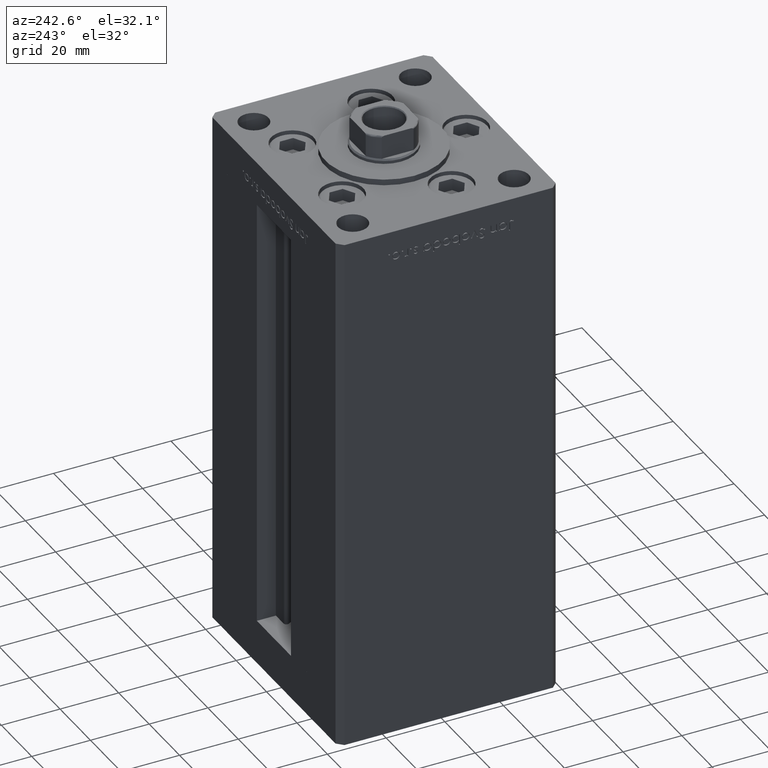
[diagram: clean part render]
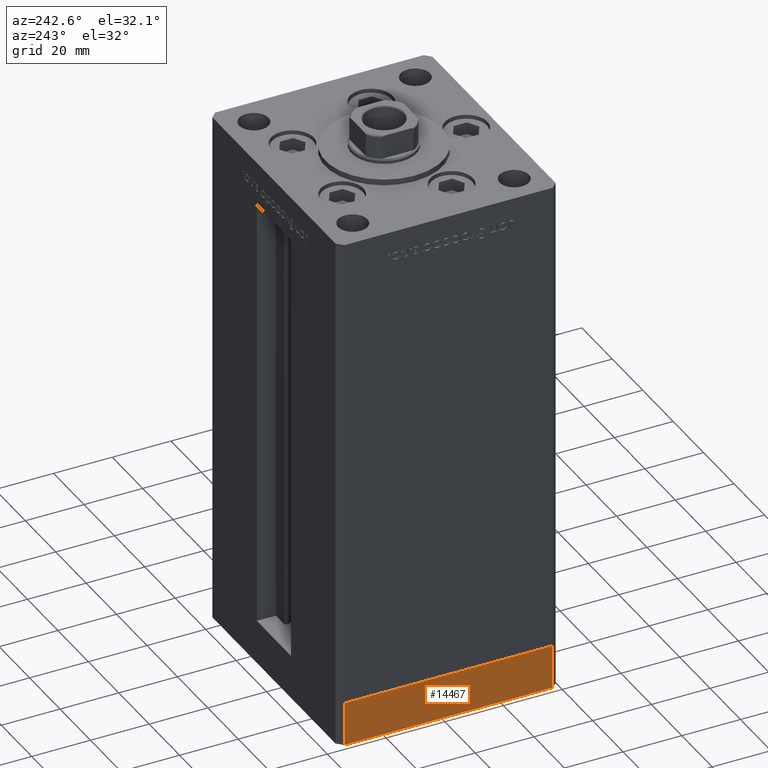
[diagram: same view with one face highlighted and labeled with its STEP entity id]
A machine part, auxiliary view. The second image highlights one B-rep face of the part: STEP entity #14467.
In plain terms, the highlighted planar face has unit normal (-1, 0, 0).
Its self-contained STEP definition (entity closure, byte-faithful):
#4286 = CARTESIAN_POINT ( 'NONE',  ( 42.49999999999992895, 35.50000000000000000, 0.000000000000000000 ) ) ;
#4882 = PLANE ( 'NONE',  #37146 ) ;
#6563 = LINE ( 'NONE', #38265, #41406 ) ;
#8338 = DIRECTION ( 'NONE',  ( -1.172770800660376741E-15, 1.000000000000000000, 0.000000000000000000 ) ) ;
#11722 = ORIENTED_EDGE ( 'NONE', *, *, #47551, .T. ) ;
#13470 = VERTEX_POINT ( 'NONE', #4286 ) ;
#14467 = ADVANCED_FACE ( 'NONE', ( #21287 ), #4882, .T. ) ;
#14987 = LINE ( 'NONE', #23442, #48666 ) ;
#15850 = VERTEX_POINT ( 'NONE', #39771 ) ;
#16283 = DIRECTION ( 'NONE',  ( 0.000000000000000000, 0.000000000000000000, 1.000000000000000000 ) ) ;
#18770 = CARTESIAN_POINT ( 'NONE',  ( 42.50000000000000711, -35.50000000000000000, -15.00000000000000000 ) ) ;
#21287 = FACE_OUTER_BOUND ( 'NONE', #24768, .T. ) ;
#22066 = ORIENTED_EDGE ( 'NONE', *, *, #35926, .T. ) ;
#22708 = DIRECTION ( 'NONE',  ( -1.172770800660376741E-15, 1.000000000000000000, 0.000000000000000000 ) ) ;
#22887 = LINE ( 'NONE', #42925, #52130 ) ;
#23442 = CARTESIAN_POINT ( 'NONE',  ( 42.49999999999992895, 35.50000000000000000, -15.00000000000000000 ) ) ;
#24768 = EDGE_LOOP ( 'NONE', ( #43894, #44280, #11722, #22066 ) ) ;
#25854 = CARTESIAN_POINT ( 'NONE',  ( 42.49999999999992895, 35.50000000000000000, -15.00000000000000000 ) ) ;
#26454 = VERTEX_POINT ( 'NONE', #25854 ) ;
#33214 = EDGE_CURVE ( 'NONE', #15850, #34758, #46724, .T. ) ;
#34758 = VERTEX_POINT ( 'NONE', #45916 ) ;
#35926 = EDGE_CURVE ( 'NONE', #26454, #13470, #14987, .T. ) ;
#37146 = AXIS2_PLACEMENT_3D ( 'NONE', #48719, #41066, #8338 ) ;
#38265 = CARTESIAN_POINT ( 'NONE',  ( 42.50000000000000711, -35.50000000000000000, -15.00000000000000000 ) ) ;
#39070 = EDGE_CURVE ( 'NONE', #34758, #13470, #22887, .T. ) ;
#39771 = CARTESIAN_POINT ( 'NONE',  ( 42.50000000000000711, -35.50000000000000000, -15.00000000000000000 ) ) ;
#41066 = DIRECTION ( 'NONE',  ( 1.000000000000000000, 1.172770800660376741E-15, -0.000000000000000000 ) ) ;
#41406 = VECTOR ( 'NONE', #22708, 1000.000000000000000 ) ;
#42703 = VECTOR ( 'NONE', #43555, 1000.000000000000000 ) ;
#42925 = CARTESIAN_POINT ( 'NONE',  ( 42.50000000000000711, -35.50000000000000000, 0.000000000000000000 ) ) ;
#43555 = DIRECTION ( 'NONE',  ( 0.000000000000000000, 0.000000000000000000, 1.000000000000000000 ) ) ;
#43894 = ORIENTED_EDGE ( 'NONE', *, *, #39070, .F. ) ;
#44280 = ORIENTED_EDGE ( 'NONE', *, *, #33214, .F. ) ;
#45916 = CARTESIAN_POINT ( 'NONE',  ( 42.50000000000000711, -35.50000000000000000, 0.000000000000000000 ) ) ;
#46724 = LINE ( 'NONE', #18770, #42703 ) ;
#47551 = EDGE_CURVE ( 'NONE', #15850, #26454, #6563, .T. ) ;
#48666 = VECTOR ( 'NONE', #16283, 1000.000000000000000 ) ;
#48719 = CARTESIAN_POINT ( 'NONE',  ( 42.50000000000000711, -35.50000000000000000, -15.00000000000000000 ) ) ;
#50299 = DIRECTION ( 'NONE',  ( -1.172770800660376741E-15, 1.000000000000000000, 0.000000000000000000 ) ) ;
#52130 = VECTOR ( 'NONE', #50299, 1000.000000000000000 ) ;